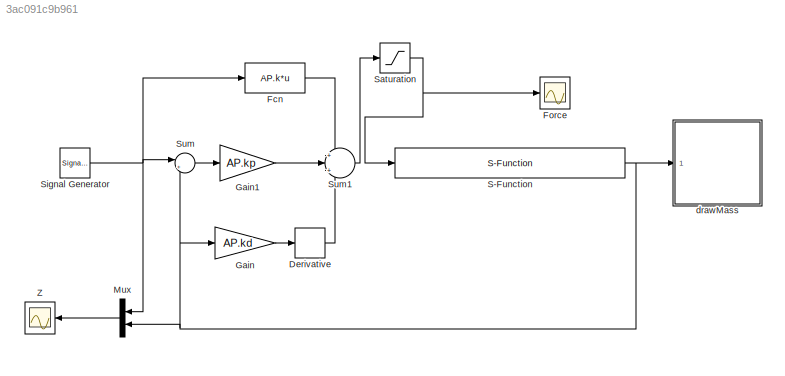
MODEL slx_3ac091c9b961
KIND model
CONFIG AbsTol = auto
CONFIG FixedStep = auto
CONFIG MaxStep = auto
CONFIG MinStep = auto
CONFIG RelTol = 1e-3
CONFIG SampleTimeConstraint = Unconstrained
CONFIG Solver = ode45
CONFIG SolverMode = Auto
CONFIG SolverName = ode45
CONFIG StartTime = 0.0
CONFIG StopTime = 60
BLOCK [Derivative] Derivative
BLOCK [Fcn] Fcn
  Expr = AP.k*u
BLOCK [Scope] Force
  Floating = off
  NumInputPorts = 1
  Ports = [1]
BLOCK [Gain] Gain
  Gain = AP.kd
  OutDataTypeStr = Inherit: Inherit via internal rule
  ParamDataTypeStr = Inherit: Inherit via internal rule
  SaturateOnIntegerOverflow = off
BLOCK [Gain] Gain1
  Gain = AP.kp
  OutDataTypeStr = Inherit: Inherit via internal rule
  ParamDataTypeStr = Inherit: Inherit via internal rule
  SaturateOnIntegerOverflow = off
BLOCK [Mux] Mux
  DisplayOption = bar
  Inputs = 2
  Ports = [2, 1]
BLOCK [S-Function] S-Function
  FunctionName = mass_spring_damper_dynamics
  Parameters = AP
  Ports = [1, 1]
BLOCK [Saturate] Saturation
  InputPortMap = u0
  LowerLimit = -2
  Ports = [1, 1]
  UpperLimit = 2
BLOCK [SignalGenerator] Signal Generator
  Amplitude = .5
  Frequency = .02
  Ports = [0, 1]
  WaveForm = square
BLOCK [Sum] Sum
  IconShape = round
  InputSameDT = off
  Inputs = |+-
  OutDataTypeStr = Inherit: Inherit via internal rule
  Ports = [2, 1]
  SaturateOnIntegerOverflow = off
BLOCK [Sum] Sum1
  IconShape = round
  InputSameDT = off
  Inputs = +|+|-
  OutDataTypeStr = Inherit: Inherit via internal rule
  Ports = [3, 1]
  SaturateOnIntegerOverflow = off
BLOCK [Scope] Z
  Floating = off
  NumInputPorts = 1
  Ports = [1]
  SaveName = ScopeData1
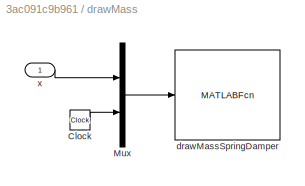
BLOCK [SubSystem] drawMass
  Ports = [1]
  RequestExecContextInheritance = off
BLOCK [Clock] drawMass/Clock
BLOCK [Mux] drawMass/Mux
  DisplayOption = bar
  Inputs = 2
  Ports = [2, 1]
BLOCK [MATLABFcn] drawMass/drawMassSpringDamper
  MATLABFcn = drawMassSpringDamper(u)
  OutputDimensions = 0
  Ports = [1]
BLOCK [Inport] drawMass/x
  IconDisplay = Port number
LINE Derivative:1 -> Sum1:3
LINE Fcn:1 -> Sum1:1
LINE Gain1:1 -> Sum1:2
LINE Gain:1 -> Derivative:1
LINE Mux:1 -> Z:1
NET S-Function:1 -> Gain:1, Mux:2, Sum:2, drawMass:1
NET Saturation:1 -> Force:1, S-Function:1
NET Signal Generator:1 -> Fcn:1, Mux:1, Sum:1
LINE Sum1:1 -> Saturation:1
LINE Sum:1 -> Gain1:1
LINE drawMass/Clock:1 -> drawMass/Mux:2
LINE drawMass/Mux:1 -> drawMass/drawMassSpringDamper:1
LINE drawMass/x:1 -> drawMass/Mux:1
note: NET lines group one-source signal fan-out (src -> all destinations, sorted); 1:1 wires keep LINE
